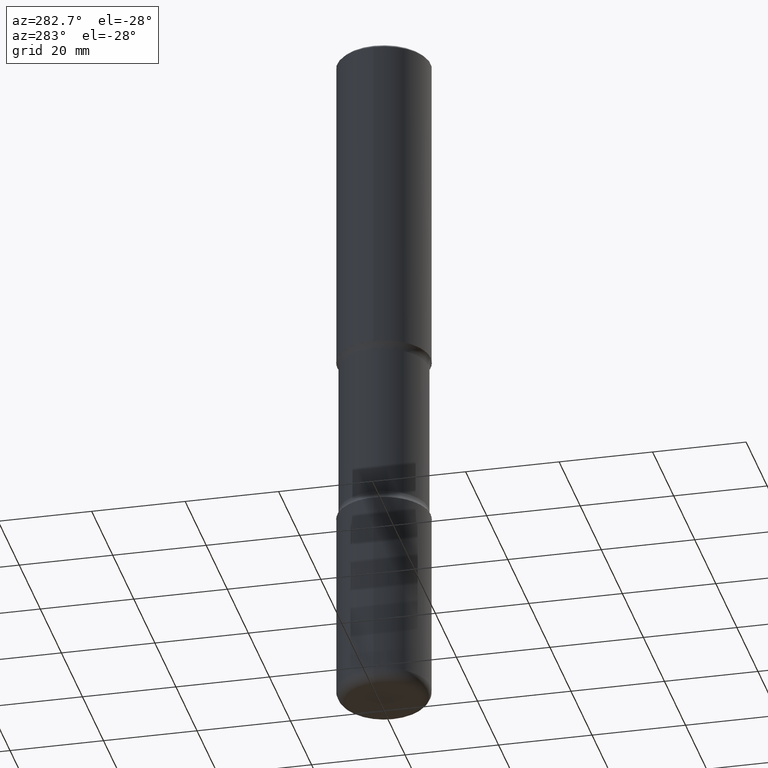
[diagram: clean part render]
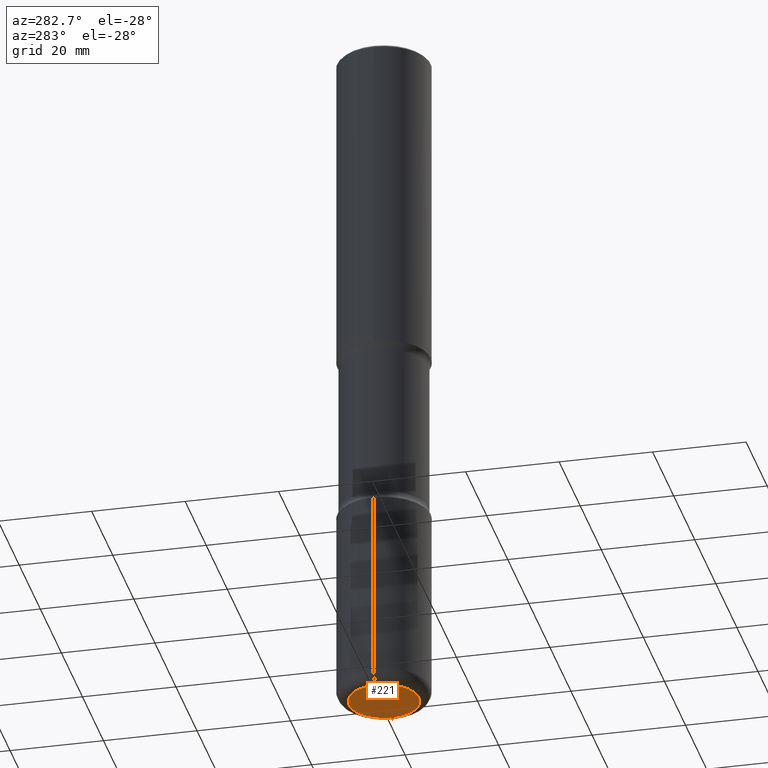
[diagram: same view with one face highlighted and labeled with its STEP entity id]
A machine part, auxiliary view. The second image highlights one B-rep face of the part: STEP entity #221.
In plain terms, the highlighted planar face has unit normal (0, -0, -1).
Its self-contained STEP definition (entity closure, byte-faithful):
#23 = AXIS2_PLACEMENT_3D ( 'NONE', #269, #218, #287 ) ;
#39 = EDGE_LOOP ( 'NONE', ( #514, #358 ) ) ;
#84 = CARTESIAN_POINT ( 'NONE',  ( 0.2953000000000005620, -2.268101192525895245E-14, -5.905499999999999972 ) ) ;
#121 = PLANE ( 'NONE',  #23 ) ;
#134 = AXIS2_PLACEMENT_3D ( 'NONE', #226, #454, #228 ) ;
#164 = EDGE_CURVE ( 'NONE', #518, #227, #288, .T. ) ;
#196 = CARTESIAN_POINT ( 'NONE',  ( 1.444171603492632270E-28, -2.061894304653819197E-14, -5.905499999999999972 ) ) ;
#216 = CIRCLE ( 'NONE', #134, 0.2953000000000005620 ) ;
#218 = DIRECTION ( 'NONE',  ( 2.438088387897960049E-29, -3.491481338843145188E-15, -1.000000000000000000 ) ) ;
#221 = ADVANCED_FACE ( 'NONE', ( #553 ), #121, .T. ) ;
#226 = CARTESIAN_POINT ( 'NONE',  ( 1.444171603492632270E-28, -2.061894304653819197E-14, -5.905499999999999972 ) ) ;
#227 = VERTEX_POINT ( 'NONE', #84 ) ;
#228 = DIRECTION ( 'NONE',  ( 1.000000000000000000, -6.982962677686270655E-15, 0.000000000000000000 ) ) ;
#269 = CARTESIAN_POINT ( 'NONE',  ( -8.181060289173079042E-30, -4.247187677709596397E-14, -5.905499999999998195 ) ) ;
#286 = CARTESIAN_POINT ( 'NONE',  ( -0.2953000000000005620, -1.799934243997356436E-14, -5.905499999999999972 ) ) ;
#287 = DIRECTION ( 'NONE',  ( -1.000000000000000000, 6.982962677686265922E-15, -4.876176775795935793E-29 ) ) ;
#288 = CIRCLE ( 'NONE', #448, 0.2953000000000005620 ) ;
#346 = DIRECTION ( 'NONE',  ( 1.000000000000000000, -6.982962677686270655E-15, 0.000000000000000000 ) ) ;
#358 = ORIENTED_EDGE ( 'NONE', *, *, #164, .F. ) ;
#376 = DIRECTION ( 'NONE',  ( -2.445468806185136597E-29, 3.491481338843145583E-15, 1.000000000000000000 ) ) ;
#448 = AXIS2_PLACEMENT_3D ( 'NONE', #196, #376, #346 ) ;
#454 = DIRECTION ( 'NONE',  ( -2.445468806185136597E-29, 3.491481338843145583E-15, 1.000000000000000000 ) ) ;
#478 = EDGE_CURVE ( 'NONE', #227, #518, #216, .T. ) ;
#514 = ORIENTED_EDGE ( 'NONE', *, *, #478, .F. ) ;
#518 = VERTEX_POINT ( 'NONE', #286 ) ;
#553 = FACE_OUTER_BOUND ( 'NONE', #39, .T. ) ;